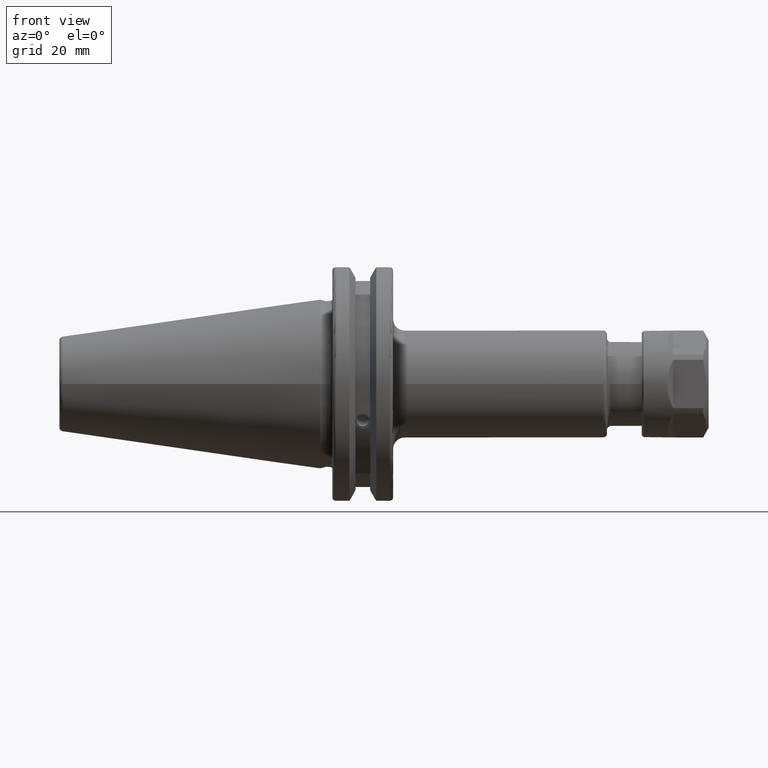
[diagram: clean part render]
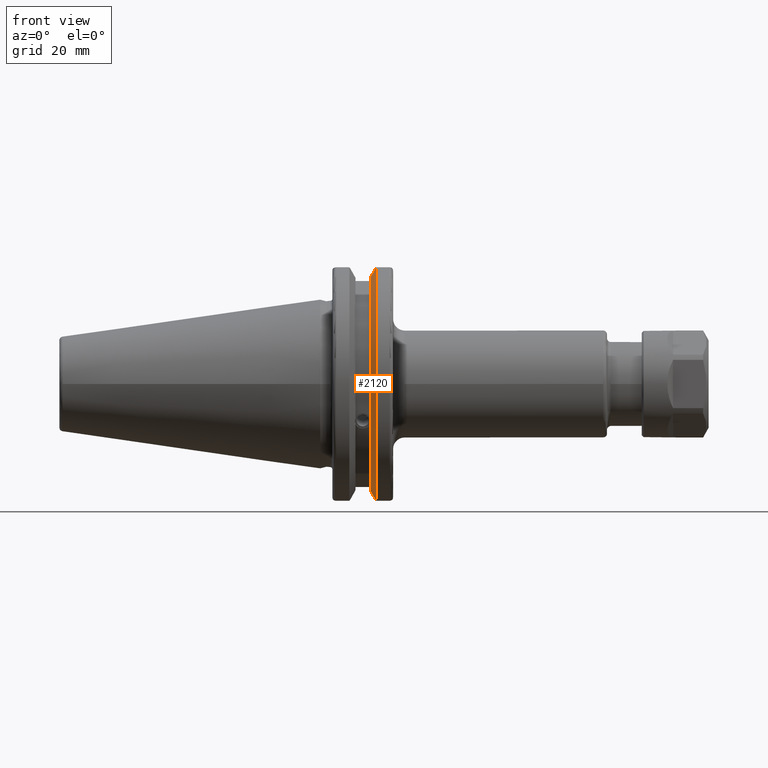
[diagram: same view with one face highlighted and labeled with its STEP entity id]
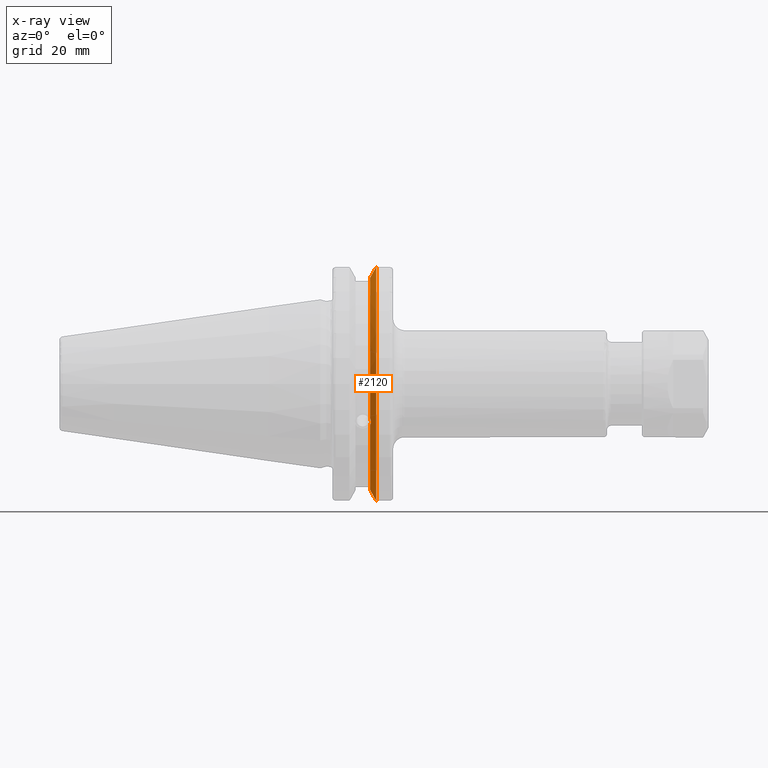
[diagram: x-ray of the same camera — body ghosted, the highlighted face saturated]
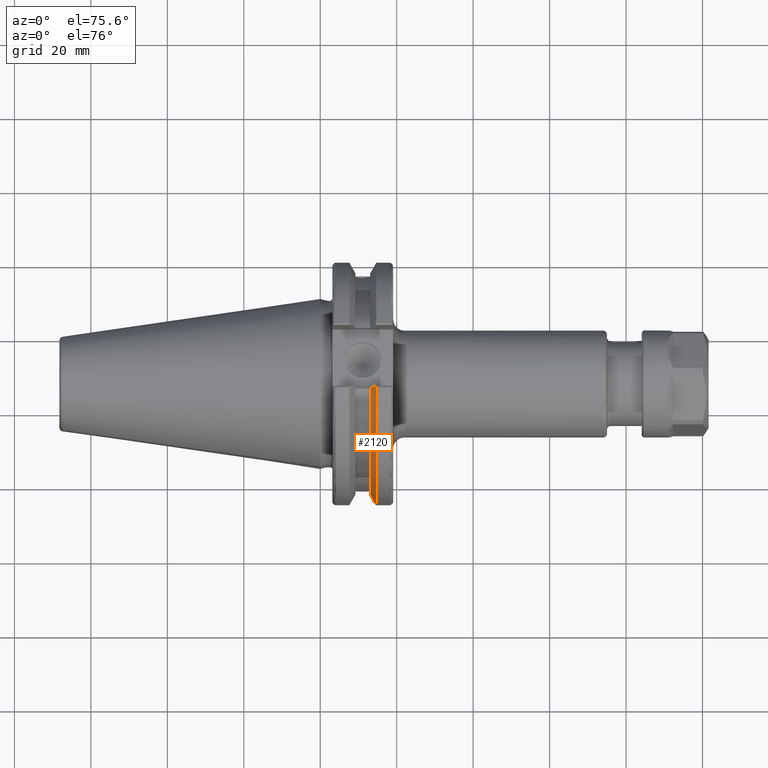
[diagram: same view with one face highlighted and labeled with its STEP entity id]
A machine part, front view. The second image highlights one B-rep face of the part: STEP entity #2120.
The next image is the same camera in x-ray: the body ghosted, the highlighted face saturated — about 0% of this face is hidden behind the body in this view.
A second angle (auxiliary view) of the same face is appended — the face is thin or edge-on in the first view.
In plain terms, the highlighted conical surface has half-angle 60 deg.
Its self-contained STEP definition (entity closure, byte-faithful):
#34=(
BOUNDED_CURVE()
B_SPLINE_CURVE(2,(#3522,#3523,#3524),.UNSPECIFIED.,.F.,.F.)
B_SPLINE_CURVE_WITH_KNOTS((3,3),(0.,0.276549142795512),.UNSPECIFIED.)
CURVE()
GEOMETRIC_REPRESENTATION_ITEM()
RATIONAL_B_SPLINE_CURVE((1.,1.00095203904184,1.00031614445102))
REPRESENTATION_ITEM('')
);
#35=(
BOUNDED_CURVE()
B_SPLINE_CURVE(2,(#3526,#3527,#3528),.UNSPECIFIED.,.F.,.F.)
B_SPLINE_CURVE_WITH_KNOTS((3,3),(0.,0.0639048713675663),.UNSPECIFIED.)
CURVE()
GEOMETRIC_REPRESENTATION_ITEM()
RATIONAL_B_SPLINE_CURVE((1.,1.00028444218286,1.00047644010578))
REPRESENTATION_ITEM('')
);
#36=(
BOUNDED_CURVE()
B_SPLINE_CURVE(2,(#3532,#3533,#3534),.UNSPECIFIED.,.F.,.F.)
B_SPLINE_CURVE_WITH_KNOTS((3,3),(0.329353533631206,0.393258405001023),
 .UNSPECIFIED.)
CURVE()
GEOMETRIC_REPRESENTATION_ITEM()
RATIONAL_B_SPLINE_CURVE((1.00047644010579,1.00028444218287,1.))
REPRESENTATION_ITEM('')
);
#37=(
BOUNDED_CURVE()
B_SPLINE_CURVE(2,(#3536,#3537,#3538),.UNSPECIFIED.,.F.,.F.)
B_SPLINE_CURVE_WITH_KNOTS((3,3),(0.0550586467393779,0.331607789535852),
 .UNSPECIFIED.)
CURVE()
GEOMETRIC_REPRESENTATION_ITEM()
RATIONAL_B_SPLINE_CURVE((1.00031614444922,1.00095203903643,1.))
REPRESENTATION_ITEM('')
);
#175=B_SPLINE_CURVE_WITH_KNOTS('',3,(#3429,#3430,#3431,#3432,#3433,#3434,
#3435,#3436),.UNSPECIFIED.,.F.,.F.,(4,2,2,4),(0.451995700189024,0.464547828547662,
0.504528771685167,0.544509714822672),.UNSPECIFIED.);
#179=B_SPLINE_CURVE_WITH_KNOTS('',3,(#3491,#3492,#3493,#3494,#3495,#3496,
#3497,#3498),.UNSPECIFIED.,.F.,.F.,(4,2,2,4),(0.544509714822672,0.584490657960178,
0.624471601097683,0.637023729456322),.UNSPECIFIED.);
#206=CONICAL_SURFACE('',#2361,30.3546886482472,1.0471975511966);
#247=FACE_OUTER_BOUND('',#380,.T.);
#380=EDGE_LOOP('',(#1549,#1550,#1551,#1552,#1553,#1554,#1555,#1556,#1557));
#795=CIRCLE('',#2362,28.9593772964944);
#796=CIRCLE('',#2363,31.75);
#797=CIRCLE('',#2364,28.9593772964944);
#920=VERTEX_POINT('',#3426);
#921=VERTEX_POINT('',#3428);
#928=VERTEX_POINT('',#3489);
#934=VERTEX_POINT('',#3519);
#935=VERTEX_POINT('',#3521);
#936=VERTEX_POINT('',#3525);
#937=VERTEX_POINT('',#3529);
#938=VERTEX_POINT('',#3531);
#939=VERTEX_POINT('',#3535);
#1151=EDGE_CURVE('',#921,#920,#175,.T.);
#1159=EDGE_CURVE('',#920,#928,#179,.T.);
#1168=EDGE_CURVE('',#928,#934,#795,.T.);
#1169=EDGE_CURVE('',#934,#935,#34,.T.);
#1170=EDGE_CURVE('',#936,#935,#35,.T.);
#1171=EDGE_CURVE('',#937,#936,#796,.T.);
#1172=EDGE_CURVE('',#938,#937,#36,.T.);
#1173=EDGE_CURVE('',#938,#939,#37,.T.);
#1174=EDGE_CURVE('',#939,#921,#797,.T.);
#1549=ORIENTED_EDGE('',*,*,#1151,.T.);
#1550=ORIENTED_EDGE('',*,*,#1159,.T.);
#1551=ORIENTED_EDGE('',*,*,#1168,.T.);
#1552=ORIENTED_EDGE('',*,*,#1169,.T.);
#1553=ORIENTED_EDGE('',*,*,#1170,.F.);
#1554=ORIENTED_EDGE('',*,*,#1171,.F.);
#1555=ORIENTED_EDGE('',*,*,#1172,.F.);
#1556=ORIENTED_EDGE('',*,*,#1173,.T.);
#1557=ORIENTED_EDGE('',*,*,#1174,.T.);
#2120=ADVANCED_FACE('',(#247),#206,.T.);
#2361=AXIS2_PLACEMENT_3D('',#3518,#2729,#2730);
#2362=AXIS2_PLACEMENT_3D('',#3520,#2731,#2732);
#2363=AXIS2_PLACEMENT_3D('',#3530,#2733,#2734);
#2364=AXIS2_PLACEMENT_3D('',#3539,#2735,#2736);
#2729=DIRECTION('center_axis',(1.,0.,0.));
#2730=DIRECTION('ref_axis',(0.,-1.,-1.22464679914735E-16));
#2731=DIRECTION('center_axis',(1.,0.,0.));
#2732=DIRECTION('ref_axis',(0.,0.,-1.));
#2733=DIRECTION('center_axis',(1.,0.,0.));
#2734=DIRECTION('ref_axis',(0.,0.,-1.));
#2735=DIRECTION('center_axis',(1.,0.,0.));
#2736=DIRECTION('ref_axis',(0.,0.,-1.));
#3426=CARTESIAN_POINT('',(13.2341,-27.51401829017,-10.0142836826777));
#3428=CARTESIAN_POINT('',(13.0491,-27.4956274489925,-9.09043478536245));
#3429=CARTESIAN_POINT('Ctrl Pts',(13.0491,-27.4956274489925,-9.09043478536245));
#3430=CARTESIAN_POINT('Ctrl Pts',(13.0632204071996,-27.5087667900418,-9.12860597076217));
#3431=CARTESIAN_POINT('Ctrl Pts',(13.0766929817857,-27.5206055003512,-9.16696618806877));
#3432=CARTESIAN_POINT('Ctrl Pts',(13.130081441159,-27.5642934663232,-9.32791534028656));
#3433=CARTESIAN_POINT('Ctrl Pts',(13.1682197084175,-27.5867382255984,-9.46717946402648));
#3434=CARTESIAN_POINT('Ctrl Pts',(13.2204106446058,-27.5847569104122,-9.74771639360671));
#3435=CARTESIAN_POINT('Ctrl Pts',(13.2341,-27.559599249844,-9.8890510252165));
#3436=CARTESIAN_POINT('Ctrl Pts',(13.2341,-27.51401829017,-10.0142836826777));
#3489=CARTESIAN_POINT('',(13.0491,-26.9060914640648,-10.7101715919071));
#3491=CARTESIAN_POINT('Ctrl Pts',(13.2341,-27.51401829017,-10.0142836826777));
#3492=CARTESIAN_POINT('Ctrl Pts',(13.2341,-27.4684373304961,-10.139516340139));
#3493=CARTESIAN_POINT('Ctrl Pts',(13.2204106446058,-27.3968610665578,-10.2639559818059));
#3494=CARTESIAN_POINT('Ctrl Pts',(13.1682197084175,-27.2180531796526,-10.4801333026531));
#3495=CARTESIAN_POINT('Ctrl Pts',(13.130081441159,-27.1113422433189,-10.5723885976054));
#3496=CARTESIAN_POINT('Ctrl Pts',(13.0766929817857,-26.9744191989197,-10.6676007180673));
#3497=CARTESIAN_POINT('Ctrl Pts',(13.0632204071996,-26.9406927482839,-10.6893765730703));
#3498=CARTESIAN_POINT('Ctrl Pts',(13.0491,-26.9060914640648,-10.7101715919071));
#3518=CARTESIAN_POINT('Origin',(13.8546833845378,0.,0.));
#3519=CARTESIAN_POINT('',(13.0491,-8.19,-27.7771386827498));
#3520=CARTESIAN_POINT('Origin',(13.0491,0.,0.));
#3521=CARTESIAN_POINT('',(14.3815146964874,-8.19,-30.1755016258903));
#3522=CARTESIAN_POINT('Ctrl Pts',(13.0491,-8.19,-27.7771386827498));
#3523=CARTESIAN_POINT('Ctrl Pts',(13.68773643849,-8.19,-28.9303689539956));
#3524=CARTESIAN_POINT('Ctrl Pts',(14.3815146964874,-8.19,-30.1755016258903));
#3525=CARTESIAN_POINT('',(14.6602667690756,-8.67204822802686,-30.5427254764662));
#3526=CARTESIAN_POINT('Ctrl Pts',(14.6602667690756,-8.67204822802687,-30.5427254764662));
#3527=CARTESIAN_POINT('Ctrl Pts',(14.5192085187837,-8.42917748262644,-30.357706789263));
#3528=CARTESIAN_POINT('Ctrl Pts',(14.3815146964874,-8.19,-30.1755016258903));
#3529=CARTESIAN_POINT('',(14.6602667690756,-8.67204822802685,30.5427254764662));
#3530=CARTESIAN_POINT('Origin',(14.6602667690756,0.,0.));
#3531=CARTESIAN_POINT('',(14.3815146964874,-8.19,30.1755016258903));
#3532=CARTESIAN_POINT('Ctrl Pts',(14.3815146964874,-8.19,30.1755016258903));
#3533=CARTESIAN_POINT('Ctrl Pts',(14.5192085187884,-8.42917748263465,30.3577067892692));
#3534=CARTESIAN_POINT('Ctrl Pts',(14.6602667690756,-8.67204822802686,30.5427254764662));
#3535=CARTESIAN_POINT('',(13.0491,-8.19,27.7771386827498));
#3536=CARTESIAN_POINT('Ctrl Pts',(14.3815146964874,-8.19,30.1755016258903));
#3537=CARTESIAN_POINT('Ctrl Pts',(13.687736438474,-8.19,28.9303689539668));
#3538=CARTESIAN_POINT('Ctrl Pts',(13.0491,-8.19,27.7771386827498));
#3539=CARTESIAN_POINT('Origin',(13.0491,0.,0.));